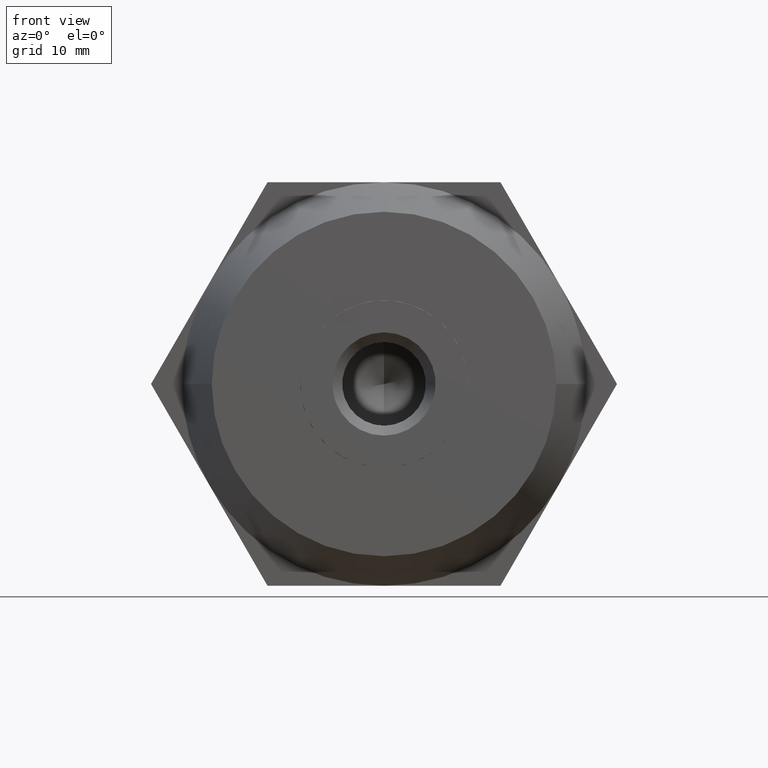
[diagram: clean part render]
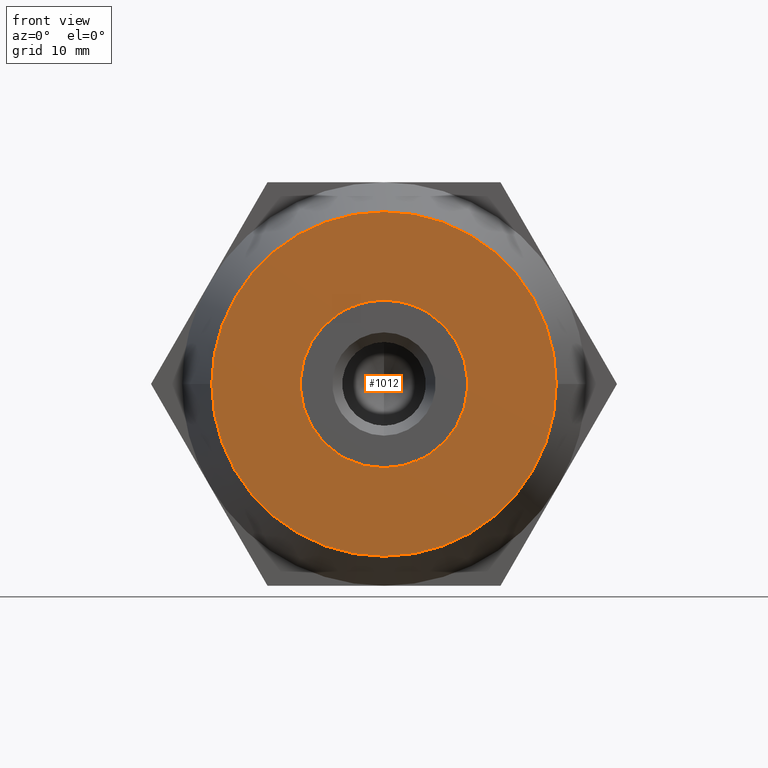
[diagram: same view with one face highlighted and labeled with its STEP entity id]
A machine part, front view. The second image highlights one B-rep face of the part: STEP entity #1012.
In plain terms, the highlighted planar face has unit normal (0, -1, 0).
Its self-contained STEP definition (entity closure, byte-faithful):
#76 = DIRECTION ( 'NONE',  ( 1.000000000000000000, 0.0000000000000000000, 1.776356839400250500E-015 ) ) ;
#96 = CIRCLE ( 'NONE', #2544, 8.509999999999999800 ) ;
#130 = AXIS2_PLACEMENT_3D ( 'NONE', #3543, #2364, #2028 ) ;
#135 = AXIS2_PLACEMENT_3D ( 'NONE', #2710, #3629, #3028 ) ;
#165 = ORIENTED_EDGE ( 'NONE', *, *, #1903, .T. ) ;
#169 = DIRECTION ( 'NONE',  ( 1.000000000000000000, 0.0000000000000000000, 0.0000000000000000000 ) ) ;
#202 = CARTESIAN_POINT ( 'NONE',  ( 1.042174426074395900E-015, -20.00000000000000000, 0.0000000000000000000 ) ) ;
#229 = CARTESIAN_POINT ( 'NONE',  ( 3.892823573006225100, -20.00000000000000000, -7.567431838440769300 ) ) ;
#286 = EDGE_CURVE ( 'NONE', #1566, #3076, #1366, .T. ) ;
#302 = EDGE_CURVE ( 'NONE', #2811, #1846, #2648, .T. ) ;
#318 = CARTESIAN_POINT ( 'NONE',  ( 3.892823573006159800, -20.00000000000000000, 7.567431838440809200 ) ) ;
#419 = VERTEX_POINT ( 'NONE', #1471 ) ;
#471 = CARTESIAN_POINT ( 'NONE',  ( -8.875000000000000000, -20.00000000000000000, -14.93893821528156000 ) ) ;
#495 = VECTOR ( 'NONE', #1496, 1000.000000000000000 ) ;
#515 = ORIENTED_EDGE ( 'NONE', *, *, #3512, .T. ) ;
#528 = LINE ( 'NONE', #840, #1156 ) ;
#553 = CARTESIAN_POINT ( 'NONE',  ( -8.500000000000000000, -20.00000000000000000, 0.0000000000000000000 ) ) ;
#574 = AXIS2_PLACEMENT_3D ( 'NONE', #1383, #1113, #2640 ) ;
#577 = LINE ( 'NONE', #1044, #3732 ) ;
#582 = FACE_OUTER_BOUND ( 'NONE', #3756, .T. ) ;
#583 = CARTESIAN_POINT ( 'NONE',  ( 8.500000000000000000, -20.00000000000000000, 0.4124318125461605100 ) ) ;
#630 = VERTEX_POINT ( 'NONE', #583 ) ;
#640 = EDGE_CURVE ( 'NONE', #3076, #1888, #2120, .T. ) ;
#645 = AXIS2_PLACEMENT_3D ( 'NONE', #1983, #1628, #2889 ) ;
#649 = CARTESIAN_POINT ( 'NONE',  ( -17.49999999999999600, -20.00000000000000400, 0.0000000000000000000 ) ) ;
#702 = EDGE_CURVE ( 'NONE', #419, #754, #3167, .T. ) ;
#754 = VERTEX_POINT ( 'NONE', #318 ) ;
#817 = CARTESIAN_POINT ( 'NONE',  ( -17.50000000000000000, -20.00000000000000000, 0.0000000000000000000 ) ) ;
#834 = EDGE_CURVE ( 'NONE', #1846, #2811, #1702, .T. ) ;
#840 = CARTESIAN_POINT ( 'NONE',  ( -8.875000000000000000, -20.00000000000000000, 14.93893821528156000 ) ) ;
#859 = AXIS2_PLACEMENT_3D ( 'NONE', #2445, #2110, #2133 ) ;
#867 = CIRCLE ( 'NONE', #2518, 8.509999999999999800 ) ;
#921 = DIRECTION ( 'NONE',  ( 0.0000000000000000000, 0.0000000000000000000, 1.000000000000000000 ) ) ;
#940 = CARTESIAN_POINT ( 'NONE',  ( 8.500000000000000000, -20.00000000000000000, -0.4124318125461785000 ) ) ;
#942 = EDGE_LOOP ( 'NONE', ( #3717, #1479, #1159, #1710, #2024, #2292, #1228, #165, #3033, #3695, #515, #2665, #2080 ) ) ;
#951 = EDGE_CURVE ( 'NONE', #2452, #630, #1603, .T. ) ;
#993 = VERTEX_POINT ( 'NONE', #3524 ) ;
#1012 = ADVANCED_FACE ( 'NONE', ( #582, #2551 ), #2059, .T. ) ;
#1044 = CARTESIAN_POINT ( 'NONE',  ( 8.500000000000000000, -20.00000000000000000, 9.190630486392029400E-015 ) ) ;
#1113 = DIRECTION ( 'NONE',  ( -1.224646799147352000E-016, 1.000000000000000000, -0.0000000000000000000 ) ) ;
#1156 = VECTOR ( 'NONE', #1739, 1000.000000000000000 ) ;
#1159 = ORIENTED_EDGE ( 'NONE', *, *, #3823, .T. ) ;
#1228 = ORIENTED_EDGE ( 'NONE', *, *, #640, .T. ) ;
#1229 = CARTESIAN_POINT ( 'NONE',  ( -17.37500000000000000, -20.00000000000000000, 0.2165063509461059900 ) ) ;
#1264 = AXIS2_PLACEMENT_3D ( 'NONE', #3059, #3703, #2806 ) ;
#1295 = VECTOR ( 'NONE', #3246, 1000.000000000000000 ) ;
#1302 = CARTESIAN_POINT ( 'NONE',  ( -8.500000000000000000, -20.00000000000000000, 0.4124318125460590400 ) ) ;
#1366 = CIRCLE ( 'NONE', #3614, 8.509999999999999800 ) ;
#1383 = CARTESIAN_POINT ( 'NONE',  ( 1.042174426074395900E-015, -20.00000000000000000, 0.0000000000000000000 ) ) ;
#1388 = EDGE_CURVE ( 'NONE', #1897, #1803, #3925, .T. ) ;
#1471 = CARTESIAN_POINT ( 'NONE',  ( -3.851859888774471700E-031, -20.00000000000000000, 8.509999999999999800 ) ) ;
#1479 = ORIENTED_EDGE ( 'NONE', *, *, #951, .T. ) ;
#1482 = CARTESIAN_POINT ( 'NONE',  ( 1.042174426074395900E-015, -20.00000000000000000, 0.0000000000000000000 ) ) ;
#1495 = CIRCLE ( 'NONE', #135, 8.509999999999999800 ) ;
#1496 = DIRECTION ( 'NONE',  ( -0.8660254037844387100, -1.060575238724905700E-016, 0.4999999999999998900 ) ) ;
#1513 = CARTESIAN_POINT ( 'NONE',  ( -4.607176426993779800, -20.00000000000000000, -7.155000025894679500 ) ) ;
#1566 = VERTEX_POINT ( 'NONE', #229 ) ;
#1603 = CIRCLE ( 'NONE', #574, 8.509999999999999800 ) ;
#1625 = CARTESIAN_POINT ( 'NONE',  ( -4.607176426993830500, -20.00000000000000000, 7.155000025894650200 ) ) ;
#1628 = DIRECTION ( 'NONE',  ( -1.224646799147352000E-016, 1.000000000000000000, 0.0000000000000000000 ) ) ;
#1702 = CIRCLE ( 'NONE', #645, 17.50000000000000000 ) ;
#1710 = ORIENTED_EDGE ( 'NONE', *, *, #3430, .T. ) ;
#1739 = DIRECTION ( 'NONE',  ( 0.8660254037844387100, 1.060575238724905700E-016, -0.4999999999999998900 ) ) ;
#1803 = VERTEX_POINT ( 'NONE', #1302 ) ;
#1846 = VERTEX_POINT ( 'NONE', #2168 ) ;
#1858 = CIRCLE ( 'NONE', #859, 8.509999999999999800 ) ;
#1888 = VERTEX_POINT ( 'NONE', #1513 ) ;
#1897 = VERTEX_POINT ( 'NONE', #2099 ) ;
#1903 = EDGE_CURVE ( 'NONE', #1888, #1897, #1495, .T. ) ;
#1909 = EDGE_CURVE ( 'NONE', #754, #2452, #528, .T. ) ;
#1983 = CARTESIAN_POINT ( 'NONE',  ( 4.898587196589409900E-015, -20.00000000000000000, 0.0000000000000000000 ) ) ;
#2024 = ORIENTED_EDGE ( 'NONE', *, *, #3371, .T. ) ;
#2028 = DIRECTION ( 'NONE',  ( -1.000000000000000000, -1.982541115402065400E-016, 0.0000000000000000000 ) ) ;
#2059 = PLANE ( 'NONE',  #3188 ) ;
#2080 = ORIENTED_EDGE ( 'NONE', *, *, #702, .T. ) ;
#2099 = CARTESIAN_POINT ( 'NONE',  ( -8.500000000000000000, -20.00000000000000000, -0.4124318125460590400 ) ) ;
#2110 = DIRECTION ( 'NONE',  ( -1.224646799147352000E-016, 1.000000000000000000, -0.0000000000000000000 ) ) ;
#2120 = LINE ( 'NONE', #1229, #495 ) ;
#2133 = DIRECTION ( 'NONE',  ( 1.000000000000000000, 0.0000000000000000000, -1.776356839400250500E-015 ) ) ;
#2168 = CARTESIAN_POINT ( 'NONE',  ( 17.50000000000000400, -19.99999999999999600, 2.326828918379971800E-015 ) ) ;
#2292 = ORIENTED_EDGE ( 'NONE', *, *, #286, .T. ) ;
#2348 = EDGE_CURVE ( 'NONE', #1803, #3708, #96, .T. ) ;
#2359 = VERTEX_POINT ( 'NONE', #940 ) ;
#2362 = CARTESIAN_POINT ( 'NONE',  ( -17.37500000000000000, -20.00000000000000000, -0.2165063509461130100 ) ) ;
#2364 = DIRECTION ( 'NONE',  ( -1.224646799147352000E-016, 1.000000000000000000, 0.0000000000000000000 ) ) ;
#2384 = ORIENTED_EDGE ( 'NONE', *, *, #302, .F. ) ;
#2386 = DIRECTION ( 'NONE',  ( 1.000000000000000000, 1.224646799147352000E-016, 0.0000000000000000000 ) ) ;
#2445 = CARTESIAN_POINT ( 'NONE',  ( 1.042174426074395900E-015, -20.00000000000000000, 0.0000000000000000000 ) ) ;
#2452 = VERTEX_POINT ( 'NONE', #2455 ) ;
#2455 = CARTESIAN_POINT ( 'NONE',  ( 4.607176426993830500, -20.00000000000000000, 7.155000025894650200 ) ) ;
#2471 = CARTESIAN_POINT ( 'NONE',  ( 4.607176426993779800, -20.00000000000000000, -7.155000025894679500 ) ) ;
#2518 = AXIS2_PLACEMENT_3D ( 'NONE', #1482, #3909, #3272 ) ;
#2544 = AXIS2_PLACEMENT_3D ( 'NONE', #2770, #3065, #76 ) ;
#2551 = FACE_BOUND ( 'NONE', #942, .T. ) ;
#2640 = DIRECTION ( 'NONE',  ( 1.000000000000000000, 0.0000000000000000000, -2.664535259100375700E-015 ) ) ;
#2648 = CIRCLE ( 'NONE', #130, 17.50000000000000000 ) ;
#2665 = ORIENTED_EDGE ( 'NONE', *, *, #3635, .T. ) ;
#2710 = CARTESIAN_POINT ( 'NONE',  ( 1.042174426074395900E-015, -20.00000000000000000, 0.0000000000000000000 ) ) ;
#2770 = CARTESIAN_POINT ( 'NONE',  ( 1.042174426074395900E-015, -20.00000000000000000, 0.0000000000000000000 ) ) ;
#2806 = DIRECTION ( 'NONE',  ( 1.000000000000000000, 0.0000000000000000000, 0.0000000000000000000 ) ) ;
#2811 = VERTEX_POINT ( 'NONE', #649 ) ;
#2889 = DIRECTION ( 'NONE',  ( -1.000000000000000000, -1.982541115402065400E-016, 0.0000000000000000000 ) ) ;
#3011 = LINE ( 'NONE', #2362, #3729 ) ;
#3025 = VERTEX_POINT ( 'NONE', #2471 ) ;
#3028 = DIRECTION ( 'NONE',  ( 1.000000000000000000, 0.0000000000000000000, 0.0000000000000000000 ) ) ;
#3033 = ORIENTED_EDGE ( 'NONE', *, *, #1388, .T. ) ;
#3059 = CARTESIAN_POINT ( 'NONE',  ( 1.042174426074395900E-015, -20.00000000000000000, 0.0000000000000000000 ) ) ;
#3063 = DIRECTION ( 'NONE',  ( 3.534857879381550100E-016, 4.328952387425414700E-032, -1.000000000000000000 ) ) ;
#3065 = DIRECTION ( 'NONE',  ( -1.224646799147352000E-016, 1.000000000000000000, -0.0000000000000000000 ) ) ;
#3076 = VERTEX_POINT ( 'NONE', #3474 ) ;
#3112 = VECTOR ( 'NONE', #921, 1000.000000000000000 ) ;
#3167 = CIRCLE ( 'NONE', #1264, 8.509999999999999800 ) ;
#3188 = AXIS2_PLACEMENT_3D ( 'NONE', #817, #3873, #2386 ) ;
#3246 = DIRECTION ( 'NONE',  ( -0.8660254037844387100, -1.060575238724905700E-016, -0.4999999999999998900 ) ) ;
#3272 = DIRECTION ( 'NONE',  ( 1.000000000000000000, 0.0000000000000000000, 0.0000000000000000000 ) ) ;
#3371 = EDGE_CURVE ( 'NONE', #3025, #1566, #3833, .T. ) ;
#3430 = EDGE_CURVE ( 'NONE', #2359, #3025, #867, .T. ) ;
#3474 = CARTESIAN_POINT ( 'NONE',  ( -3.892823573006219700, -20.00000000000000000, -7.567431838440779900 ) ) ;
#3512 = EDGE_CURVE ( 'NONE', #3708, #993, #3011, .T. ) ;
#3524 = CARTESIAN_POINT ( 'NONE',  ( -3.892823573006165100, -20.00000000000000000, 7.567431838440799500 ) ) ;
#3543 = CARTESIAN_POINT ( 'NONE',  ( 4.898587196589409900E-015, -20.00000000000000000, 0.0000000000000000000 ) ) ;
#3555 = DIRECTION ( 'NONE',  ( -1.224646799147352000E-016, 1.000000000000000000, -0.0000000000000000000 ) ) ;
#3614 = AXIS2_PLACEMENT_3D ( 'NONE', #202, #3555, #169 ) ;
#3629 = DIRECTION ( 'NONE',  ( -1.224646799147352000E-016, 1.000000000000000000, -0.0000000000000000000 ) ) ;
#3635 = EDGE_CURVE ( 'NONE', #993, #419, #1858, .T. ) ;
#3695 = ORIENTED_EDGE ( 'NONE', *, *, #2348, .T. ) ;
#3703 = DIRECTION ( 'NONE',  ( -1.224646799147352000E-016, 1.000000000000000000, -0.0000000000000000000 ) ) ;
#3708 = VERTEX_POINT ( 'NONE', #1625 ) ;
#3717 = ORIENTED_EDGE ( 'NONE', *, *, #1909, .T. ) ;
#3729 = VECTOR ( 'NONE', #3887, 1000.000000000000000 ) ;
#3732 = VECTOR ( 'NONE', #3063, 1000.000000000000000 ) ;
#3756 = EDGE_LOOP ( 'NONE', ( #2384, #3937 ) ) ;
#3823 = EDGE_CURVE ( 'NONE', #630, #2359, #577, .T. ) ;
#3833 = LINE ( 'NONE', #471, #1295 ) ;
#3873 = DIRECTION ( 'NONE',  ( 1.224646799147352000E-016, -1.000000000000000000, 0.0000000000000000000 ) ) ;
#3887 = DIRECTION ( 'NONE',  ( 0.8660254037844387100, 1.060575238724905700E-016, 0.4999999999999998900 ) ) ;
#3909 = DIRECTION ( 'NONE',  ( -1.224646799147352000E-016, 1.000000000000000000, -0.0000000000000000000 ) ) ;
#3925 = LINE ( 'NONE', #553, #3112 ) ;
#3937 = ORIENTED_EDGE ( 'NONE', *, *, #834, .F. ) ;